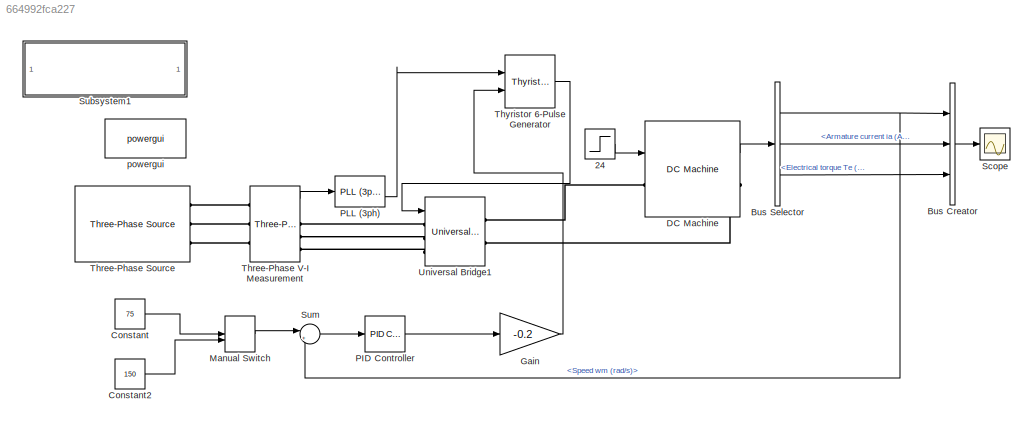
MODEL slx_664992fca227
KIND model
CONFIG AbsTol = auto
CONFIG EnableMultiTasking = off
CONFIG FixedStep = auto
CONFIG MaxStep = auto
CONFIG MinStep = auto
CONFIG RelTol = 1e-3
CONFIG SampleTimeConstraint = Unconstrained
CONFIG Solver = ode23
CONFIG SolverName = ode23
CONFIG StartTime = 0.0
CONFIG StopTime = 8
BLOCK [Step] 24
  After = 24
  SampleTime = 0
  Time = 0
BLOCK [BusCreator] Bus Creator
  DisplayOption = bar
  InheritFromInputs = on
  Inputs = 3
  Ports = [3, 1]
BLOCK [BusSelector] Bus Selector
  OutputAsBus = off
  OutputSignals = Speed wm (rad/s),Armature current ia (A),Electrical torque Te (n m)
  Ports = [1, 3]
BLOCK [Constant] Constant
  Value = 75
BLOCK [Constant] Constant2
  Value = 150
BLOCK [Reference] DC Machine  REF=powerlib/Machines/DC Machine
  Ports = [1, 1, 0, 0, 0, 1, 1]
  SourceBlock = powerlib/Machines/DC Machine
  SourceProductBaseCode = PS
  SourceProductName = Simscape Power Systems
  SourceType = DC machine
BLOCK [Gain] Gain
  Gain = -0.2
  OutDataTypeStr = Inherit: Inherit via internal rule
  ParamDataTypeStr = Inherit: Inherit via internal rule
  SaturateOnIntegerOverflow = off
BLOCK [ManualSwitch] Manual Switch
  CurrentSetting = 0
BLOCK [Reference] PID Controller  REF=simulink/Continuous/PID Controller
  Ports = [1, 1]
  SourceBlock = simulink/Continuous/PID Controller
  SourceProductBaseCode = SL
  SourceProductName = Simulink
  SourceType = PID 1dof
BLOCK [Reference] PLL (3ph)  REF=powerlib_meascontrol/PLL/PLL
(3ph)
  Ports = [1, 2]
  SourceBlock = powerlib_meascontrol/PLL/PLL\n(3ph)
  SourceProductBaseCode = PS
  SourceProductName = Simscape Power Systems
  SourceType = PLL (3ph)
BLOCK [Scope] Scope
  Floating = off
  NumInputPorts = 1
  Ports = [1]
  ScopeSpecificationString = Simulink.scopes.TimeScopeBlockCfg('CurrentConfiguration', extmgr.ConfigurationSet(extmgr.Configuration('Core','General UI',true,'FigureColor',[1 1 1]),extmgr.Configuration('Core','Source UI',true),extmgr.Configuration('Sources','WiredSimulink',true,'DataLoggingSaveFormat','Array','DataLoggingDecimation','1','DataLoggingDecimateData',true),extmgr.Configuration('Visuals','Time Domain',true,'Serializ...<+2544ch>
BLOCK [SubSystem] Subsystem1
  OpenFcn = open_system('power_new_palette')
  Ports = []
  RequestExecContextInheritance = off
  ShowPortLabels = none
BLOCK [Sum] Sum
  IconShape = round
  InputSameDT = off
  Inputs = |+-
  OutDataTypeStr = Inherit: Inherit via internal rule
  Ports = [2, 1]
  SaturateOnIntegerOverflow = off
BLOCK [Reference] Three-Phase Source  REF=powerlib/Electrical
Sources/Three-Phase Source
  Ports = [0, 0, 0, 0, 0, 0, 3]
  SourceBlock = powerlib/Electrical\nSources/Three-Phase Source
  SourceProductBaseCode = PS
  SourceProductName = Simscape Power Systems
  SourceType = Three-Phase Source
BLOCK [Reference] Three-Phase V-I Measurement  REF=powerlib/Measurements/Three-Phase
V-I Measurement
  Ports = [0, 2, 0, 0, 0, 3, 3]
  SourceBlock = powerlib/Measurements/Three-Phase\nV-I Measurement
  SourceProductBaseCode = PS
  SourceProductName = Simscape Power Systems
  SourceType = Three-Phase VI Measurement
BLOCK [Reference] Thyristor 6-Pulse Generator  REF=peThyristorSixPulseGenerator/Thyristor 6-Pulse
Generator
  Ports = [2, 1]
  SourceBlock = peThyristorSixPulseGenerator/Thyristor 6-Pulse\nGenerator
  SourceType = Thyristor 6-Pulse Generator
BLOCK [Reference] Universal Bridge1  REF=powerlib/Power
Electronics/Universal Bridge
  Ports = [1, 0, 0, 0, 0, 3, 2]
  SourceBlock = powerlib/Power\nElectronics/Universal Bridge
  SourceProductBaseCode = PS
  SourceProductName = Simscape Power Systems
  SourceType = Universal Bridge
BLOCK [Reference] powergui  REF=powerlib/powergui
  Ports = []
  Priority = 1
  SourceBlock = powerlib/powergui
  SourceProductBaseCode = PS
  SourceProductName = Simscape Power Systems
  SourceType = PSB option menu block
LINE 24:1 -> DC Machine:1
LINE Bus Creator:1 -> Scope:1
NET Bus Selector:1 -> Bus Creator:1, Sum:2
LINE Bus Selector:2 -> Bus Creator:2
LINE Bus Selector:3 -> Bus Creator:3
LINE Constant2:1 -> Manual Switch:2
LINE Constant:1 -> Manual Switch:1
LINE DC Machine:1 -> Bus Selector:1
LINE Gain:1 -> Thyristor 6-Pulse Generator:2
LINE Manual Switch:1 -> Sum:1
LINE PID Controller:1 -> Gain:1
LINE PLL (3ph):2 -> Thyristor 6-Pulse Generator:1
LINE Sum:1 -> PID Controller:1
LINE Three-Phase V-I Measurement:1 -> PLL (3ph):1
LINE Thyristor 6-Pulse Generator:1 -> Universal Bridge1:1
PLINE DC Machine:LConn1 -- Universal Bridge1:RConn1
PLINE DC Machine:RConn1 -- Universal Bridge1:RConn2
PLINE Three-Phase Source:RConn1 -- Three-Phase V-I Measurement:LConn1
PLINE Three-Phase Source:RConn2 -- Three-Phase V-I Measurement:LConn2
PLINE Three-Phase Source:RConn3 -- Three-Phase V-I Measurement:LConn3
PLINE Three-Phase V-I Measurement:RConn1 -- Universal Bridge1:LConn1
PLINE Three-Phase V-I Measurement:RConn2 -- Universal Bridge1:LConn2
PLINE Three-Phase V-I Measurement:RConn3 -- Universal Bridge1:LConn3
note: NET lines group one-source signal fan-out (src -> all destinations, sorted); 1:1 wires keep LINE
